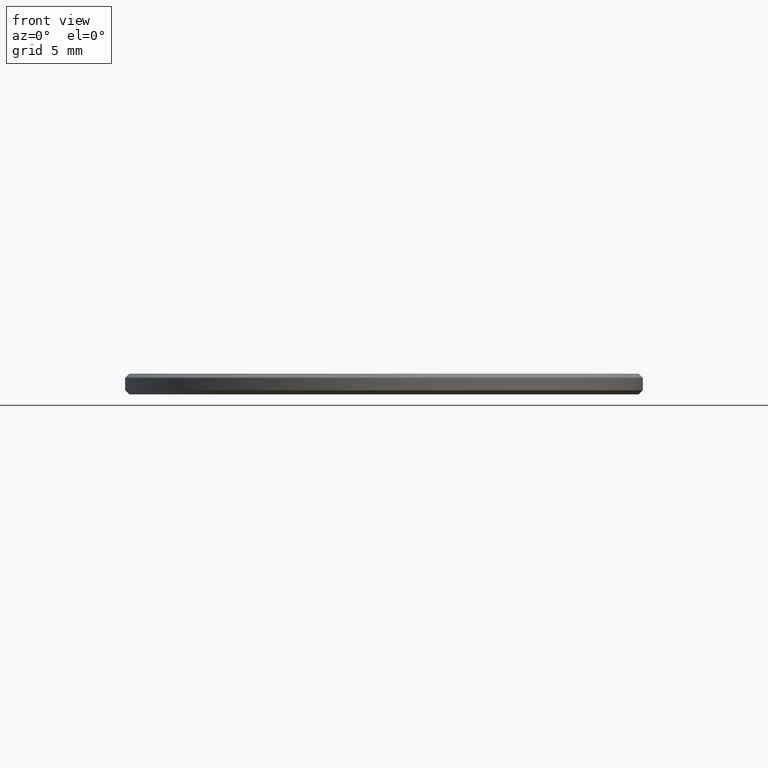
[diagram: clean part render]
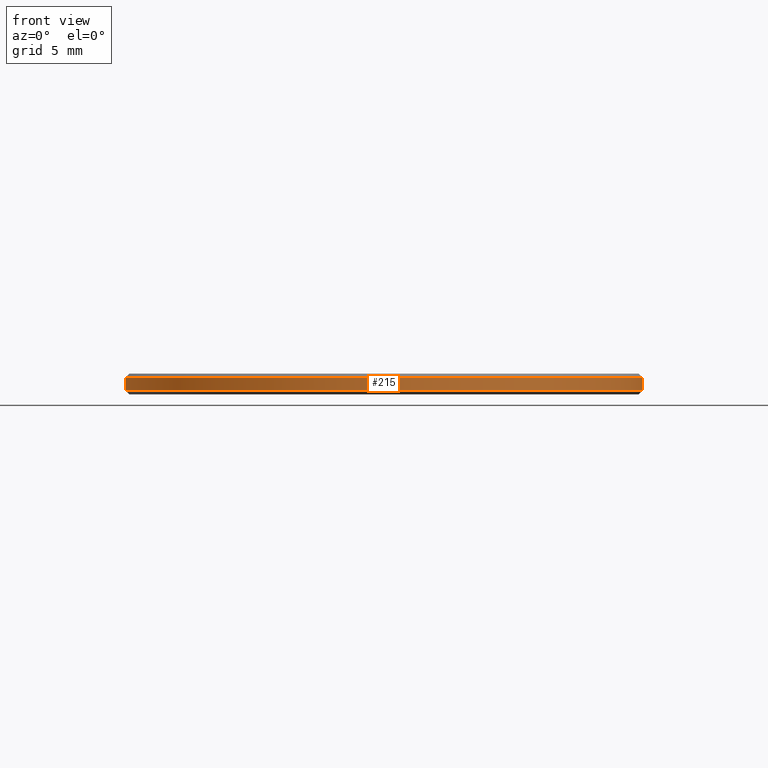
[diagram: same view with one face highlighted and labeled with its STEP entity id]
A machine part, front view. The second image highlights one B-rep face of the part: STEP entity #215.
In plain terms, the highlighted cylindrical surface (partial cylindrical patch) has radius 12.5 mm, axis along (-0, -0, -1).
Its self-contained STEP definition (entity closure, byte-faithful):
#1 = CARTESIAN_POINT ( 'NONE',  ( 0.000000000000000000, 0.000000000000000000, 1.000000000000000000 ) ) ;
#4 = AXIS2_PLACEMENT_3D ( 'NONE', #43, #168, #136 ) ;
#7 = CARTESIAN_POINT ( 'NONE',  ( -12.50000000000000000, 0.000000000000000000, 0.1999999999999987899 ) ) ;
#13 = CARTESIAN_POINT ( 'NONE',  ( 12.50000000000000000, 1.530808498934191521E-15, 0.1999999999999987899 ) ) ;
#31 = EDGE_CURVE ( 'NONE', #173, #68, #236, .T. ) ;
#37 = AXIS2_PLACEMENT_3D ( 'NONE', #164, #147, #132 ) ;
#41 = DIRECTION ( 'NONE',  ( -0.000000000000000000, -0.000000000000000000, -1.000000000000000000 ) ) ;
#43 = CARTESIAN_POINT ( 'NONE',  ( 0.000000000000000000, 0.000000000000000000, 0.8000000000000029310 ) ) ;
#62 = AXIS2_PLACEMENT_3D ( 'NONE', #1, #41, #157 ) ;
#68 = VERTEX_POINT ( 'NONE', #13 ) ;
#71 = CIRCLE ( 'NONE', #37, 12.50000000000000000 ) ;
#78 = CARTESIAN_POINT ( 'NONE',  ( 12.50000000000000000, 1.530808498934191521E-15, 0.8000000000000029310 ) ) ;
#81 = FACE_OUTER_BOUND ( 'NONE', #105, .T. ) ;
#82 = EDGE_CURVE ( 'NONE', #126, #68, #71, .T. ) ;
#86 = ORIENTED_EDGE ( 'NONE', *, *, #117, .T. ) ;
#94 = CARTESIAN_POINT ( 'NONE',  ( 12.50000000000000000, 1.530808498934191521E-15, 1.000000000000000000 ) ) ;
#105 = EDGE_LOOP ( 'NONE', ( #180, #86, #123, #140 ) ) ;
#114 = EDGE_CURVE ( 'NONE', #228, #126, #196, .T. ) ;
#117 = EDGE_CURVE ( 'NONE', #173, #228, #238, .T. ) ;
#123 = ORIENTED_EDGE ( 'NONE', *, *, #114, .T. ) ;
#126 = VERTEX_POINT ( 'NONE', #7 ) ;
#131 = DIRECTION ( 'NONE',  ( -0.000000000000000000, -0.000000000000000000, -1.000000000000000000 ) ) ;
#132 = DIRECTION ( 'NONE',  ( 1.000000000000000000, 0.000000000000000000, 0.000000000000000000 ) ) ;
#133 = CARTESIAN_POINT ( 'NONE',  ( -12.50000000000000000, 0.000000000000000000, 0.8000000000000029310 ) ) ;
#136 = DIRECTION ( 'NONE',  ( 1.000000000000000000, 0.000000000000000000, 0.000000000000000000 ) ) ;
#140 = ORIENTED_EDGE ( 'NONE', *, *, #82, .T. ) ;
#147 = DIRECTION ( 'NONE',  ( -0.000000000000000000, -0.000000000000000000, 1.000000000000000000 ) ) ;
#151 = VECTOR ( 'NONE', #155, 1000.000000000000000 ) ;
#155 = DIRECTION ( 'NONE',  ( -0.000000000000000000, -0.000000000000000000, -1.000000000000000000 ) ) ;
#157 = DIRECTION ( 'NONE',  ( -1.000000000000000000, 0.000000000000000000, 0.000000000000000000 ) ) ;
#164 = CARTESIAN_POINT ( 'NONE',  ( 0.000000000000000000, 0.000000000000000000, 0.1999999999999987899 ) ) ;
#168 = DIRECTION ( 'NONE',  ( 0.000000000000000000, 0.000000000000000000, -1.000000000000000000 ) ) ;
#169 = CYLINDRICAL_SURFACE ( 'NONE', #62, 12.50000000000000000 ) ;
#173 = VERTEX_POINT ( 'NONE', #78 ) ;
#180 = ORIENTED_EDGE ( 'NONE', *, *, #31, .F. ) ;
#196 = LINE ( 'NONE', #229, #151 ) ;
#215 = ADVANCED_FACE ( 'NONE', ( #81 ), #169, .T. ) ;
#228 = VERTEX_POINT ( 'NONE', #133 ) ;
#229 = CARTESIAN_POINT ( 'NONE',  ( -12.50000000000000000, 0.000000000000000000, 1.000000000000000000 ) ) ;
#234 = VECTOR ( 'NONE', #131, 1000.000000000000000 ) ;
#236 = LINE ( 'NONE', #94, #234 ) ;
#238 = CIRCLE ( 'NONE', #4, 12.50000000000000000 ) ;